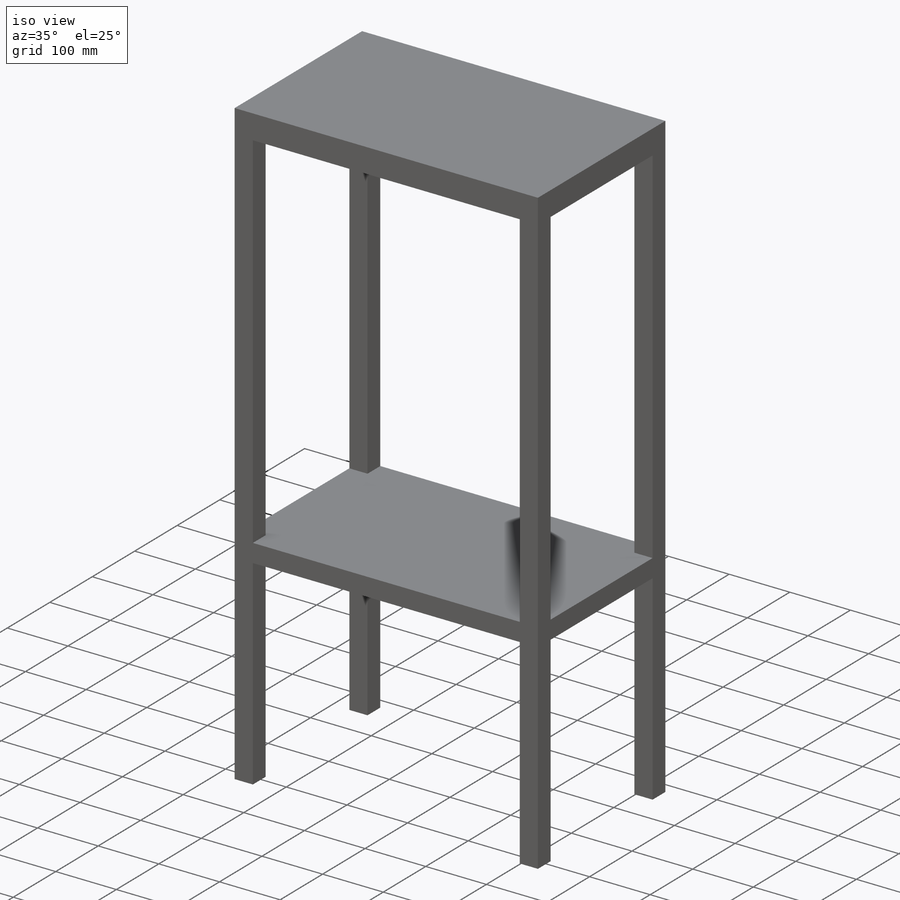
[diagram: iso view]
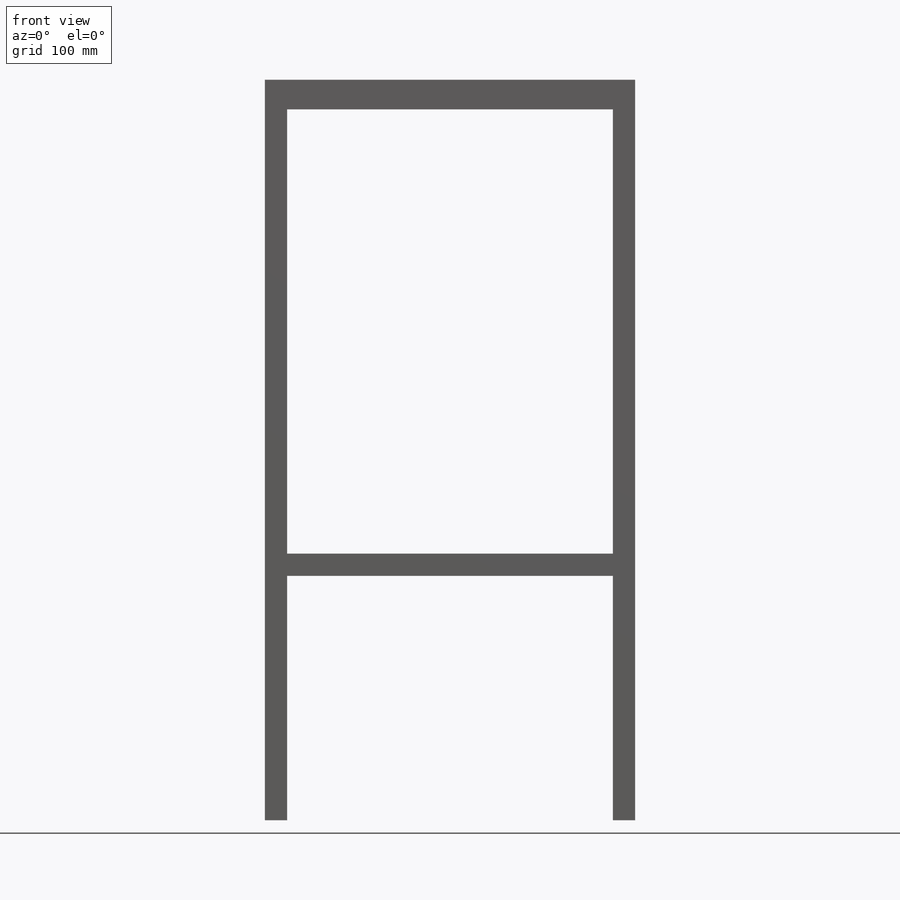
[diagram: front view]
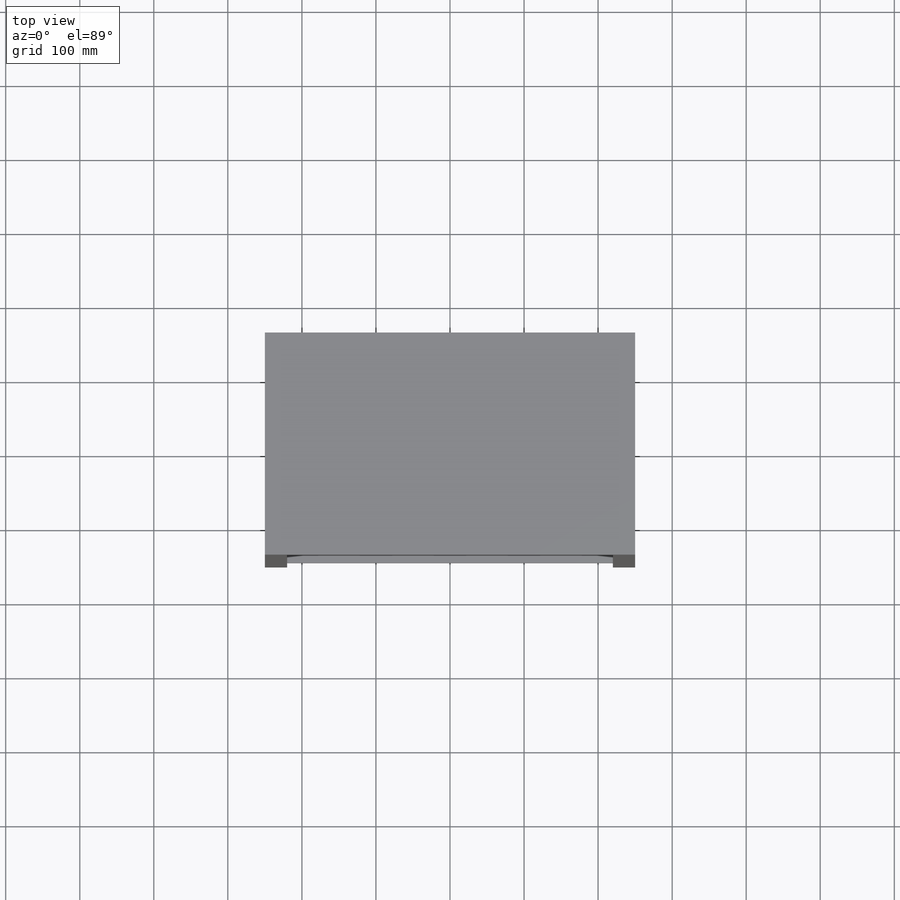
[diagram: top view]
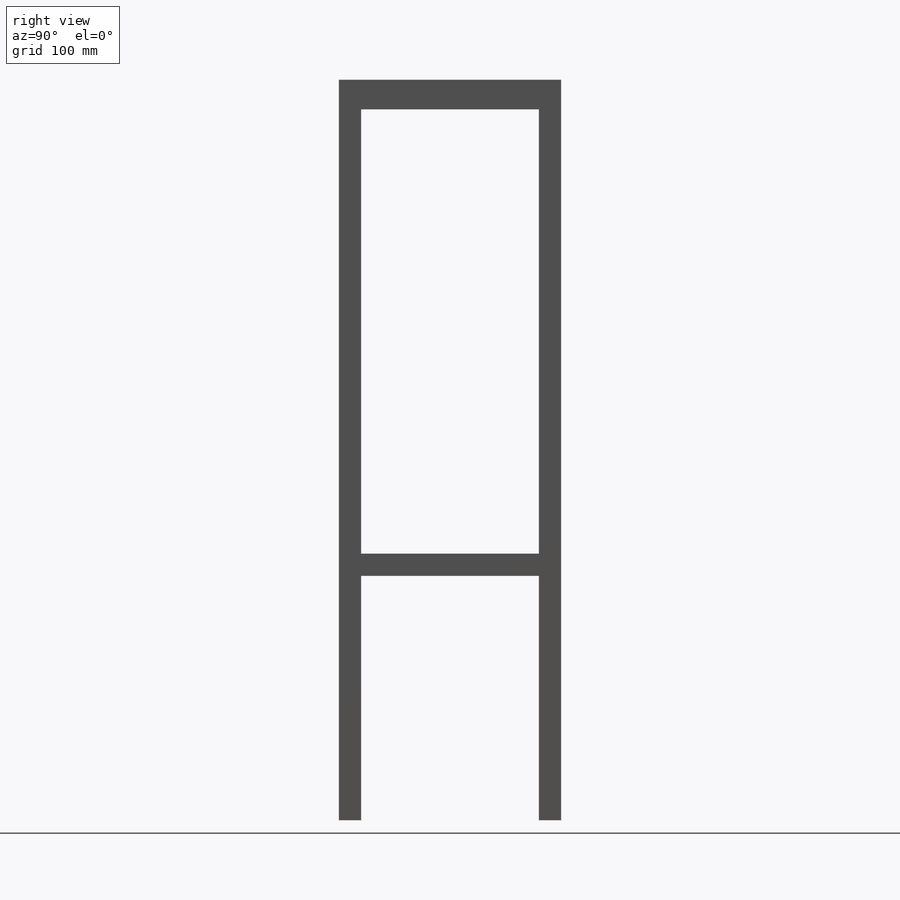
[diagram: right view]
SOLIDWORKS PART (.sldprt)
format: sldprt  version: not decoded by parser v0  size: 176,640 bytes
history: native  units: mm
features: sketch x5, cut_extrude x4, material x1, extrude x1 (+11 scaffold rows collapsed)
feature tree (22):
  scaffold x11  (default folders/planes/origin — collapsed)
  material  "1023 Carbon Steel Sheet (SS)"
  sketch  "Sketch1"  dims[D1=300.0mm D2=500.0mm]
  extrude  "Boss-Extrude1"  Depth=1000mm
  sketch  "Sketch2"  dims[D1=440.0mm D2=600.0mm]
  cut_extrude  "Cut-Extrude1"  Depth=1000mm
  sketch  "Sketch3"  dims[D1=30.0mm]
  cut_extrude  "Cut-Extrude2"  Depth=1000mm
  sketch  "Sketch4"  dims[D1=30.0mm D2=30.0mm D3=960.0mm D4=240.0mm D5=600.0mm]
  cut_extrude  "Cut-Extrude3"  Depth=1000mm
  sketch  "Sketch5"  dims[D1=30.0mm]
  cut_extrude  "Cut-Extrude4"  Depth=1000mm
decode coverage: 10 of 10 modeling features carry decoded parameters
note: suppression state not decoded; provenance and decode notes live in map.json
